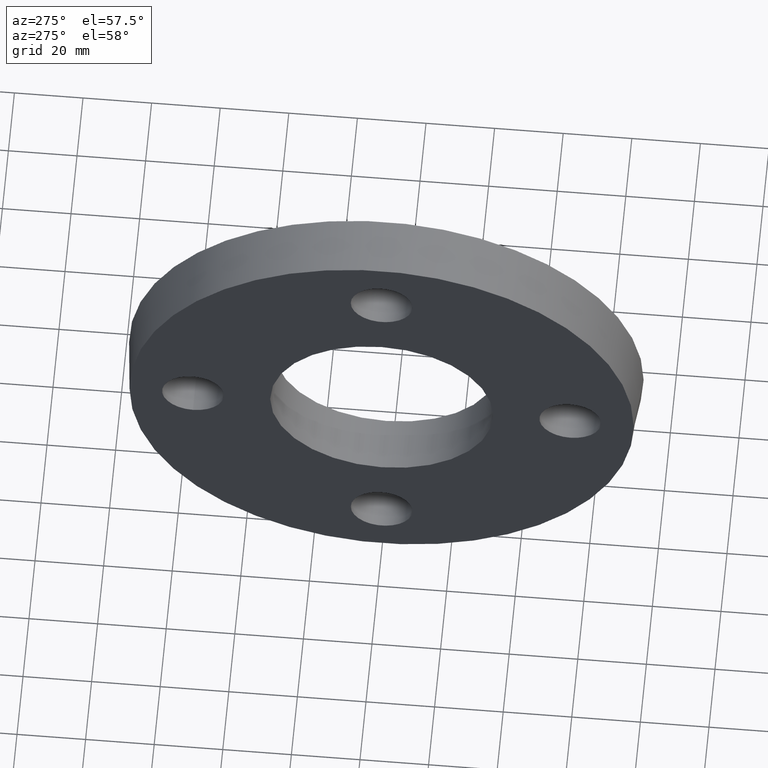
[diagram: clean part render]
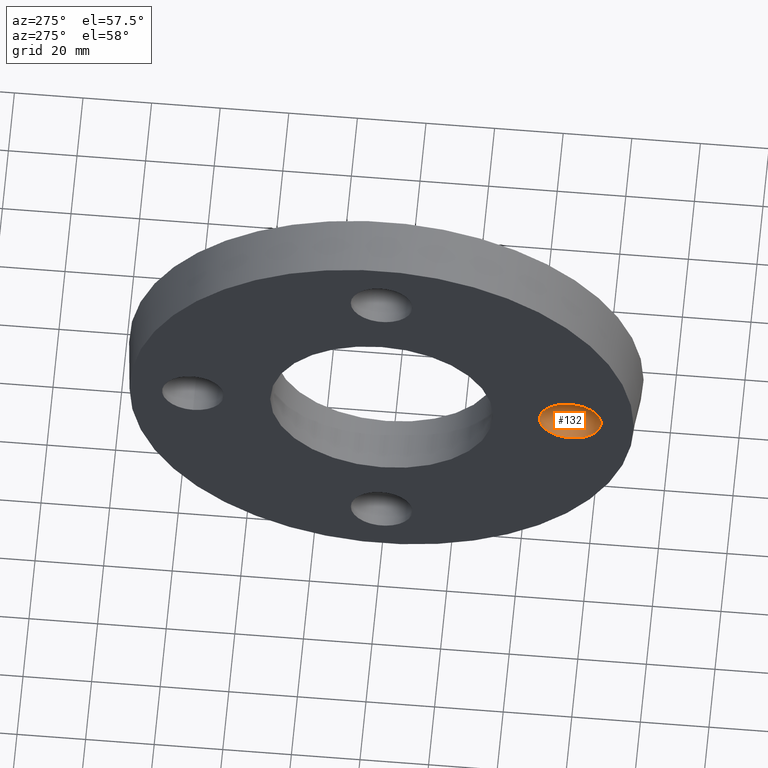
[diagram: same view with one face highlighted and labeled with its STEP entity id]
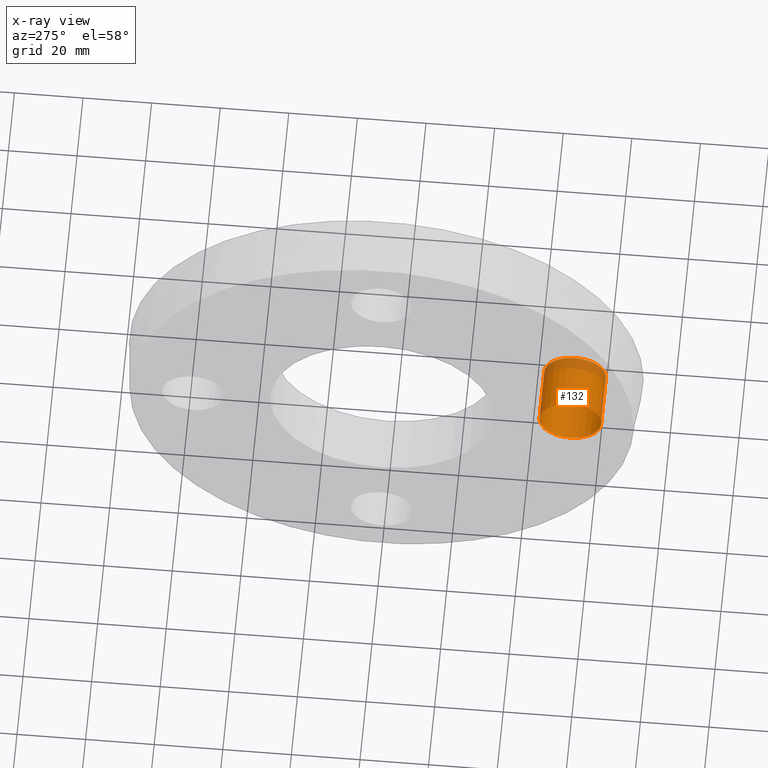
[diagram: x-ray of the same camera — body ghosted, the highlighted face saturated]
A machine part, auxiliary view. The second image highlights one B-rep face of the part: STEP entity #132.
The next image is the same camera in x-ray: the body ghosted, the highlighted face saturated — about 15% of this face is hidden behind the body in this view.
In plain terms, the highlighted cylindrical surface (bore or boss wall) has radius 9 mm, axis along (-1, 0, 0).
Its self-contained STEP definition (entity closure, byte-faithful):
#19=FACE_BOUND('',#45,.T.);
#35=FACE_OUTER_BOUND('',#44,.T.);
#44=EDGE_LOOP('',(#104));
#45=EDGE_LOOP('',(#105));
#68=CIRCLE('',#145,9.);
#69=CIRCLE('',#146,9.);
#80=VERTEX_POINT('',#210);
#81=VERTEX_POINT('',#212);
#92=EDGE_CURVE('',#80,#80,#68,.T.);
#93=EDGE_CURVE('',#81,#81,#69,.T.);
#104=ORIENTED_EDGE('',*,*,#92,.F.);
#105=ORIENTED_EDGE('',*,*,#93,.F.);
#127=CYLINDRICAL_SURFACE('',#144,9.);
#132=ADVANCED_FACE('',(#35,#19),#127,.F.);
#144=AXIS2_PLACEMENT_3D('',#209,#169,#170);
#145=AXIS2_PLACEMENT_3D('',#211,#171,#172);
#146=AXIS2_PLACEMENT_3D('',#213,#173,#174);
#169=DIRECTION('center_axis',(-1.,0.,0.));
#170=DIRECTION('ref_axis',(0.,1.22464679914735E-16,-1.));
#171=DIRECTION('center_axis',(1.,0.,0.));
#172=DIRECTION('ref_axis',(0.,1.22464679914735E-16,-1.));
#173=DIRECTION('center_axis',(-1.,0.,0.));
#174=DIRECTION('ref_axis',(0.,1.22464679914735E-16,-1.));
#209=CARTESIAN_POINT('Origin',(8.,-55.,-6.73555739531044E-15));
#210=CARTESIAN_POINT('',(-8.,-55.,8.99999999999999));
#211=CARTESIAN_POINT('Origin',(-8.,-55.,-6.73555739531044E-15));
#212=CARTESIAN_POINT('',(8.,-55.,8.99999999999999));
#213=CARTESIAN_POINT('Origin',(8.,-55.,-6.73555739531044E-15));